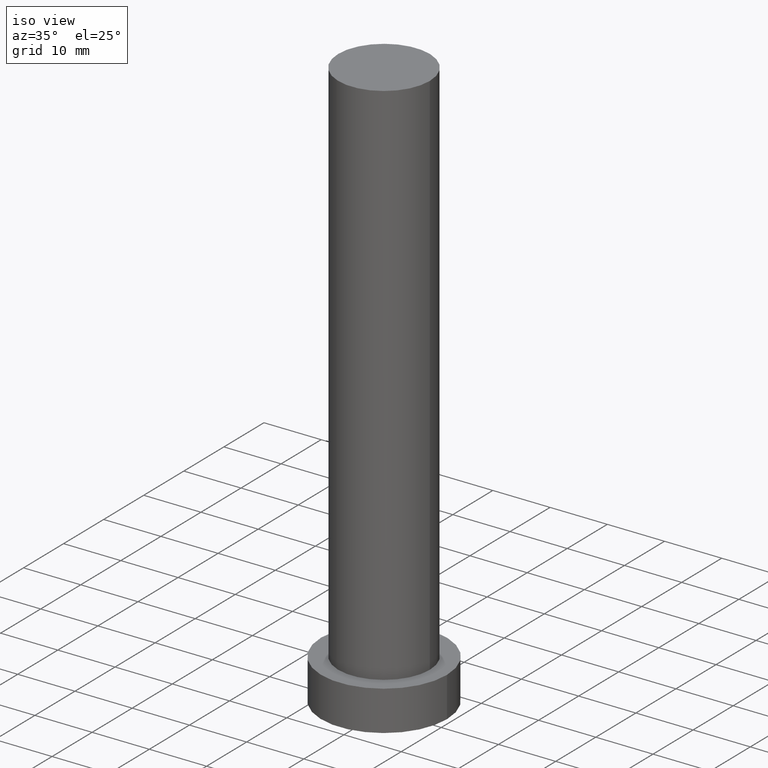
[diagram: clean part render]
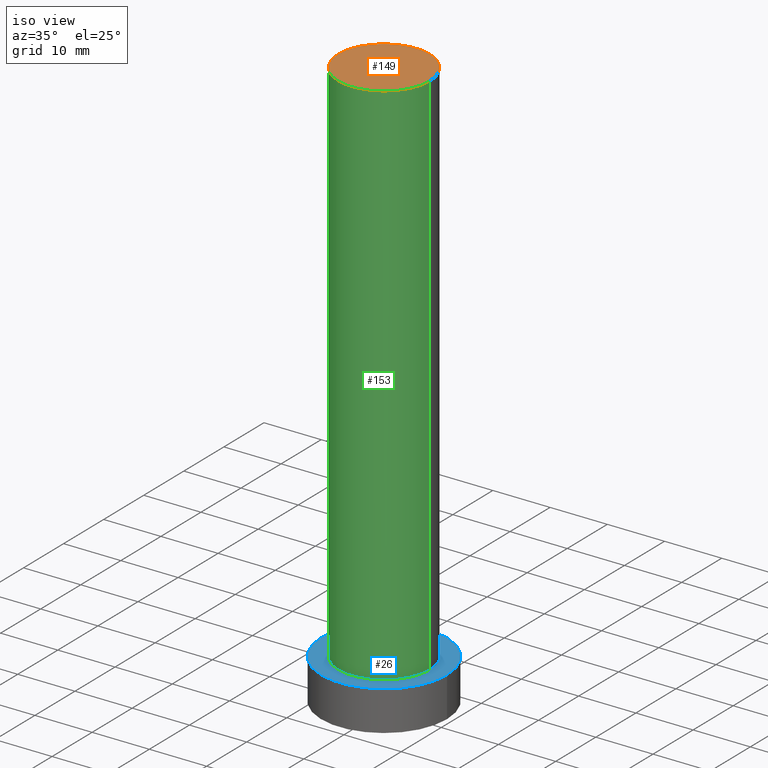
[diagram: same view with three faces highlighted in distinct colors, each labeled with its STEP entity id]
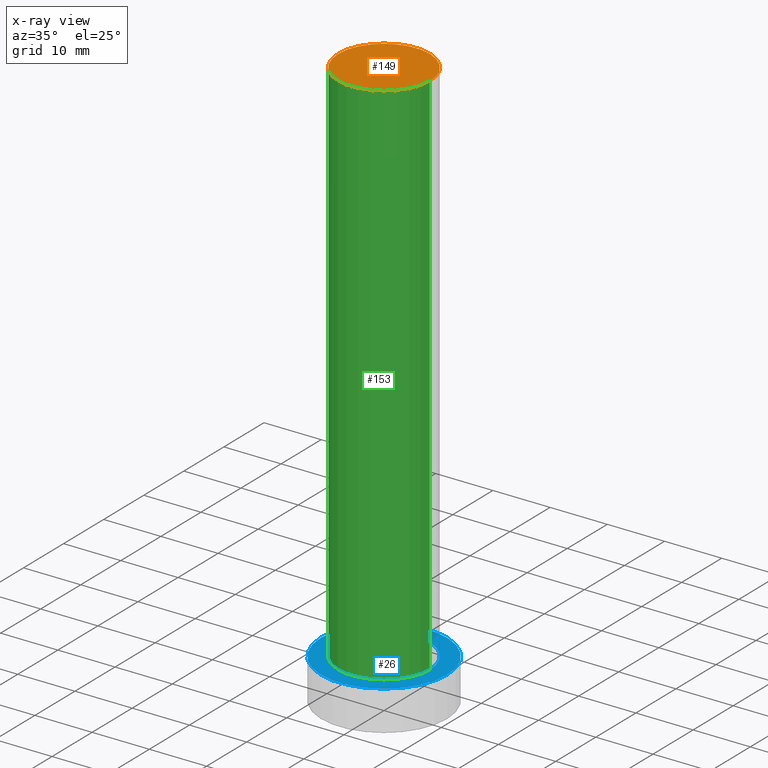
[diagram: x-ray of the same camera — body ghosted, the three highlighted faces saturated]
A machine part, iso view with three faces highlighted in distinct colors.
The next image is the same camera in x-ray (body ghosted, the three faces saturated) — at least one of them is partly hidden behind the body in this view.
Their STEP definitions:

[orange] entity #149 — the highlighted planar face has unit normal (0, 0, 1).
#14 = CARTESIAN_POINT ( 'NONE',  ( 0.000000000000000000, 0.000000000000000000, 100.0000000000000000 ) ) ;
#17 = EDGE_CURVE ( 'NONE', #177, #220, #191, .T. ) ;
#25 = ORIENTED_EDGE ( 'NONE', *, *, #85, .T. ) ;
#27 = EDGE_LOOP ( 'NONE', ( #25, #240 ) ) ;
#40 = DIRECTION ( 'NONE',  ( 1.000000000000000000, 0.000000000000000000, -0.000000000000000000 ) ) ;
#51 = DIRECTION ( 'NONE',  ( 1.000000000000000000, 0.000000000000000000, 0.000000000000000000 ) ) ;
#54 = DIRECTION ( 'NONE',  ( 0.000000000000000000, 0.000000000000000000, 1.000000000000000000 ) ) ;
#64 = AXIS2_PLACEMENT_3D ( 'NONE', #224, #54, #40 ) ;
#80 = FACE_OUTER_BOUND ( 'NONE', #27, .T. ) ;
#85 = EDGE_CURVE ( 'NONE', #220, #177, #179, .T. ) ;
#86 = AXIS2_PLACEMENT_3D ( 'NONE', #219, #221, #51 ) ;
#94 = DIRECTION ( 'NONE',  ( 0.000000000000000000, 0.000000000000000000, 1.000000000000000000 ) ) ;
#99 = DIRECTION ( 'NONE',  ( 1.000000000000000000, 0.000000000000000000, 0.000000000000000000 ) ) ;
#105 = AXIS2_PLACEMENT_3D ( 'NONE', #14, #94, #99 ) ;
#110 = PLANE ( 'NONE',  #64 ) ;
#149 = ADVANCED_FACE ( 'NONE', ( #80 ), #110, .T. ) ;
#177 = VERTEX_POINT ( 'NONE', #252 ) ;
#179 = CIRCLE ( 'NONE', #105, 8.000000000000000000 ) ;
#191 = CIRCLE ( 'NONE', #86, 8.000000000000000000 ) ;
#206 = CARTESIAN_POINT ( 'NONE',  ( -8.000000000000000000, 0.000000000000000000, 100.0000000000000000 ) ) ;
#219 = CARTESIAN_POINT ( 'NONE',  ( 0.000000000000000000, 0.000000000000000000, 100.0000000000000000 ) ) ;
#220 = VERTEX_POINT ( 'NONE', #206 ) ;
#221 = DIRECTION ( 'NONE',  ( 0.000000000000000000, 0.000000000000000000, 1.000000000000000000 ) ) ;
#224 = CARTESIAN_POINT ( 'NONE',  ( 0.000000000000000000, 0.000000000000000000, 100.0000000000000000 ) ) ;
#240 = ORIENTED_EDGE ( 'NONE', *, *, #17, .T. ) ;
#252 = CARTESIAN_POINT ( 'NONE',  ( 8.000000000000000000, 9.797174393178823685E-16, 100.0000000000000000 ) ) ;

[blue] entity #26 — the highlighted planar face has unit normal (0, 0, 1).
#3 = AXIS2_PLACEMENT_3D ( 'NONE', #68, #217, #45 ) ;
#4 = FACE_OUTER_BOUND ( 'NONE', #70, .T. ) ;
#6 = VERTEX_POINT ( 'NONE', #197 ) ;
#12 = CARTESIAN_POINT ( 'NONE',  ( 0.000000000000000000, 0.000000000000000000, 7.000000000000000000 ) ) ;
#26 = ADVANCED_FACE ( 'NONE', ( #126, #4 ), #237, .T. ) ;
#39 = CARTESIAN_POINT ( 'NONE',  ( 11.00000000000000000, 1.347111479062088405E-15, 7.000000000000000000 ) ) ;
#45 = DIRECTION ( 'NONE',  ( 1.000000000000000000, 0.000000000000000000, -0.000000000000000000 ) ) ;
#65 = CIRCLE ( 'NONE', #120, 8.000000000000000000 ) ;
#68 = CARTESIAN_POINT ( 'NONE',  ( 0.000000000000000000, 0.000000000000000000, 7.000000000000000000 ) ) ;
#70 = EDGE_LOOP ( 'NONE', ( #136, #123 ) ) ;
#73 = VERTEX_POINT ( 'NONE', #39 ) ;
#81 = DIRECTION ( 'NONE',  ( 0.000000000000000000, 0.000000000000000000, 1.000000000000000000 ) ) ;
#87 = AXIS2_PLACEMENT_3D ( 'NONE', #12, #93, #162 ) ;
#93 = DIRECTION ( 'NONE',  ( 0.000000000000000000, 0.000000000000000000, 1.000000000000000000 ) ) ;
#96 = DIRECTION ( 'NONE',  ( 0.000000000000000000, 0.000000000000000000, 1.000000000000000000 ) ) ;
#101 = ORIENTED_EDGE ( 'NONE', *, *, #201, .F. ) ;
#107 = EDGE_LOOP ( 'NONE', ( #176, #101 ) ) ;
#116 = CARTESIAN_POINT ( 'NONE',  ( 8.000000000000000000, 9.797174393178823685E-16, 7.000000000000000000 ) ) ;
#118 = CIRCLE ( 'NONE', #210, 11.00000000000000000 ) ;
#120 = AXIS2_PLACEMENT_3D ( 'NONE', #131, #182, #211 ) ;
#123 = ORIENTED_EDGE ( 'NONE', *, *, #231, .T. ) ;
#126 = FACE_BOUND ( 'NONE', #107, .T. ) ;
#131 = CARTESIAN_POINT ( 'NONE',  ( 0.000000000000000000, 0.000000000000000000, 7.000000000000000000 ) ) ;
#136 = ORIENTED_EDGE ( 'NONE', *, *, #216, .T. ) ;
#138 = VERTEX_POINT ( 'NONE', #116 ) ;
#142 = CARTESIAN_POINT ( 'NONE',  ( -8.000000000000000000, 0.000000000000000000, 7.000000000000000000 ) ) ;
#157 = EDGE_CURVE ( 'NONE', #238, #138, #65, .T. ) ;
#162 = DIRECTION ( 'NONE',  ( 1.000000000000000000, 0.000000000000000000, 0.000000000000000000 ) ) ;
#176 = ORIENTED_EDGE ( 'NONE', *, *, #157, .F. ) ;
#182 = DIRECTION ( 'NONE',  ( 0.000000000000000000, 0.000000000000000000, 1.000000000000000000 ) ) ;
#186 = CARTESIAN_POINT ( 'NONE',  ( 0.000000000000000000, 0.000000000000000000, 7.000000000000000000 ) ) ;
#188 = DIRECTION ( 'NONE',  ( 1.000000000000000000, 0.000000000000000000, 0.000000000000000000 ) ) ;
#193 = CIRCLE ( 'NONE', #87, 11.00000000000000000 ) ;
#197 = CARTESIAN_POINT ( 'NONE',  ( -11.00000000000000000, 0.000000000000000000, 7.000000000000000000 ) ) ;
#201 = EDGE_CURVE ( 'NONE', #138, #238, #245, .T. ) ;
#209 = CARTESIAN_POINT ( 'NONE',  ( 0.000000000000000000, 0.000000000000000000, 7.000000000000000000 ) ) ;
#210 = AXIS2_PLACEMENT_3D ( 'NONE', #209, #81, #188 ) ;
#211 = DIRECTION ( 'NONE',  ( 1.000000000000000000, 0.000000000000000000, 0.000000000000000000 ) ) ;
#216 = EDGE_CURVE ( 'NONE', #6, #73, #118, .T. ) ;
#217 = DIRECTION ( 'NONE',  ( 0.000000000000000000, 0.000000000000000000, 1.000000000000000000 ) ) ;
#230 = AXIS2_PLACEMENT_3D ( 'NONE', #186, #96, #233 ) ;
#231 = EDGE_CURVE ( 'NONE', #73, #6, #193, .T. ) ;
#233 = DIRECTION ( 'NONE',  ( 1.000000000000000000, 0.000000000000000000, 0.000000000000000000 ) ) ;
#237 = PLANE ( 'NONE',  #3 ) ;
#238 = VERTEX_POINT ( 'NONE', #142 ) ;
#245 = CIRCLE ( 'NONE', #230, 8.000000000000000000 ) ;

[green] entity #153 — the highlighted cylindrical surface (partial cylindrical patch) has radius 8 mm, axis along (-0, -0, -1).
#7 = ORIENTED_EDGE ( 'NONE', *, *, #250, .F. ) ;
#14 = CARTESIAN_POINT ( 'NONE',  ( 0.000000000000000000, 0.000000000000000000, 100.0000000000000000 ) ) ;
#23 = LINE ( 'NONE', #132, #38 ) ;
#38 = VECTOR ( 'NONE', #212, 1000.000000000000000 ) ;
#42 = CARTESIAN_POINT ( 'NONE',  ( 8.000000000000000000, 9.797174393178823685E-16, 100.0000000000000000 ) ) ;
#46 = ORIENTED_EDGE ( 'NONE', *, *, #157, .T. ) ;
#59 = FACE_OUTER_BOUND ( 'NONE', #137, .T. ) ;
#65 = CIRCLE ( 'NONE', #120, 8.000000000000000000 ) ;
#79 = DIRECTION ( 'NONE',  ( -1.000000000000000000, 0.000000000000000000, 0.000000000000000000 ) ) ;
#85 = EDGE_CURVE ( 'NONE', #220, #177, #179, .T. ) ;
#94 = DIRECTION ( 'NONE',  ( 0.000000000000000000, 0.000000000000000000, 1.000000000000000000 ) ) ;
#99 = DIRECTION ( 'NONE',  ( 1.000000000000000000, 0.000000000000000000, 0.000000000000000000 ) ) ;
#104 = ORIENTED_EDGE ( 'NONE', *, *, #85, .F. ) ;
#105 = AXIS2_PLACEMENT_3D ( 'NONE', #14, #94, #99 ) ;
#116 = CARTESIAN_POINT ( 'NONE',  ( 8.000000000000000000, 9.797174393178823685E-16, 7.000000000000000000 ) ) ;
#117 = LINE ( 'NONE', #42, #135 ) ;
#120 = AXIS2_PLACEMENT_3D ( 'NONE', #131, #182, #211 ) ;
#131 = CARTESIAN_POINT ( 'NONE',  ( 0.000000000000000000, 0.000000000000000000, 7.000000000000000000 ) ) ;
#132 = CARTESIAN_POINT ( 'NONE',  ( -8.000000000000000000, 0.000000000000000000, 100.0000000000000000 ) ) ;
#135 = VECTOR ( 'NONE', #192, 1000.000000000000000 ) ;
#137 = EDGE_LOOP ( 'NONE', ( #7, #104, #218, #46 ) ) ;
#138 = VERTEX_POINT ( 'NONE', #116 ) ;
#142 = CARTESIAN_POINT ( 'NONE',  ( -8.000000000000000000, 0.000000000000000000, 7.000000000000000000 ) ) ;
#153 = ADVANCED_FACE ( 'NONE', ( #59 ), #167, .T. ) ;
#157 = EDGE_CURVE ( 'NONE', #238, #138, #65, .T. ) ;
#167 = CYLINDRICAL_SURFACE ( 'NONE', #203, 8.000000000000000000 ) ;
#170 = CARTESIAN_POINT ( 'NONE',  ( 0.000000000000000000, 0.000000000000000000, 100.0000000000000000 ) ) ;
#177 = VERTEX_POINT ( 'NONE', #252 ) ;
#179 = CIRCLE ( 'NONE', #105, 8.000000000000000000 ) ;
#182 = DIRECTION ( 'NONE',  ( 0.000000000000000000, 0.000000000000000000, 1.000000000000000000 ) ) ;
#192 = DIRECTION ( 'NONE',  ( -0.000000000000000000, -0.000000000000000000, -1.000000000000000000 ) ) ;
#203 = AXIS2_PLACEMENT_3D ( 'NONE', #170, #246, #79 ) ;
#206 = CARTESIAN_POINT ( 'NONE',  ( -8.000000000000000000, 0.000000000000000000, 100.0000000000000000 ) ) ;
#211 = DIRECTION ( 'NONE',  ( 1.000000000000000000, 0.000000000000000000, 0.000000000000000000 ) ) ;
#212 = DIRECTION ( 'NONE',  ( -0.000000000000000000, -0.000000000000000000, -1.000000000000000000 ) ) ;
#218 = ORIENTED_EDGE ( 'NONE', *, *, #255, .T. ) ;
#220 = VERTEX_POINT ( 'NONE', #206 ) ;
#238 = VERTEX_POINT ( 'NONE', #142 ) ;
#246 = DIRECTION ( 'NONE',  ( -0.000000000000000000, -0.000000000000000000, -1.000000000000000000 ) ) ;
#250 = EDGE_CURVE ( 'NONE', #177, #138, #117, .T. ) ;
#252 = CARTESIAN_POINT ( 'NONE',  ( 8.000000000000000000, 9.797174393178823685E-16, 100.0000000000000000 ) ) ;
#255 = EDGE_CURVE ( 'NONE', #220, #238, #23, .T. ) ;